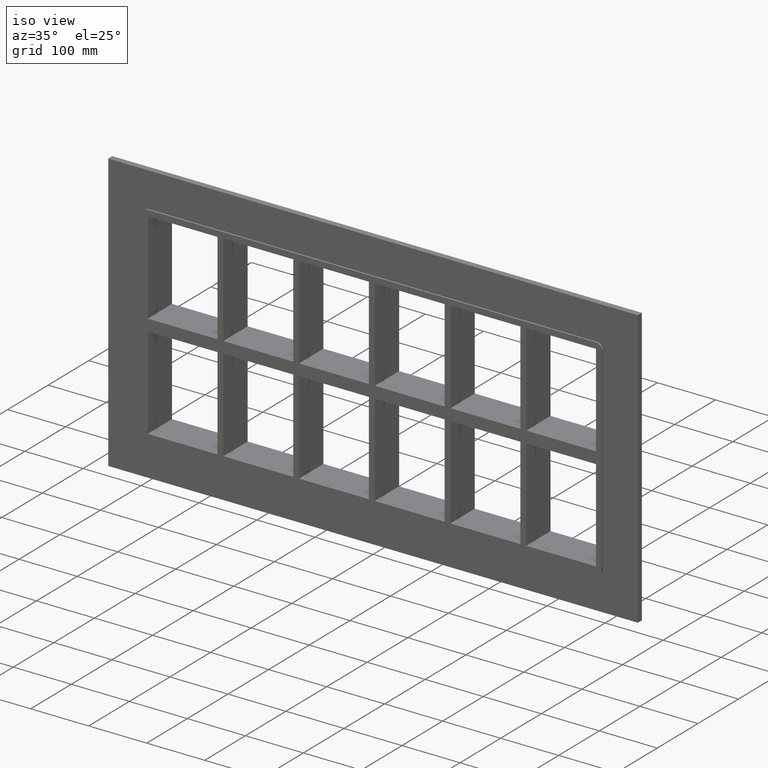
[diagram: clean part render]
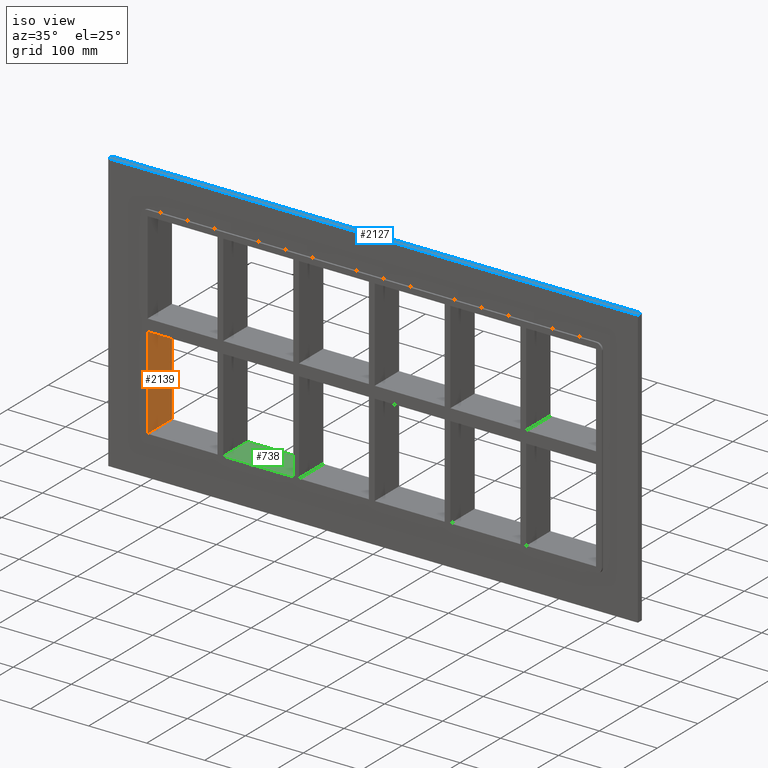
[diagram: same view with three faces highlighted in distinct colors, each labeled with its STEP entity id]
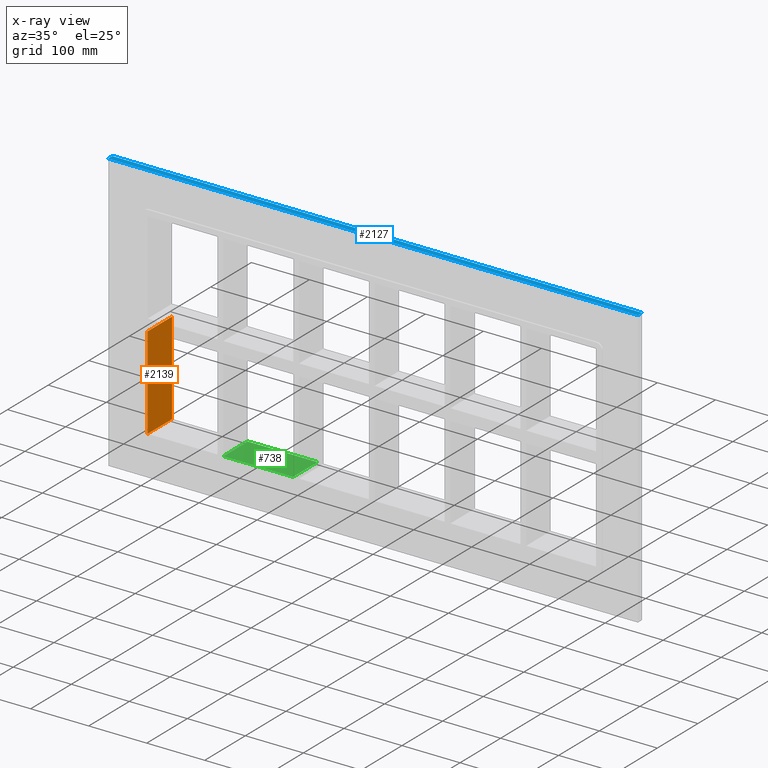
[diagram: x-ray of the same camera — body ghosted, the three highlighted faces saturated]
A machine part, iso view with three faces highlighted in distinct colors.
The next image is the same camera in x-ray (body ghosted, the three faces saturated) — at least one of them is partly hidden behind the body in this view.
Their STEP definitions:

[orange] entity #2139 — the highlighted planar face has unit normal (-1, 0, 0).
#1114=CARTESIAN_POINT('',(-386.49999999999977,-3.0,-10.000000000009379));
#1115=VERTEX_POINT('',#1114);
#1130=CARTESIAN_POINT('',(-386.50000000000006,-3.0,-169.50000000000003));
#1131=VERTEX_POINT('',#1130);
#1138=CARTESIAN_POINT('',(-386.50000000000006,-3.0,-169.50000000000003));
#1139=DIRECTION('',(0.0,0.0,1.0));
#1140=VECTOR('',#1139,159.49999999999065);
#1141=LINE('',#1138,#1140);
#1142=EDGE_CURVE('',#1131,#1115,#1141,.T.);
#1456=CARTESIAN_POINT('',(-386.49999999999977,57.0,-10.000000000009379));
#1457=VERTEX_POINT('',#1456);
#1458=CARTESIAN_POINT('',(-386.50000000000006,57.0,-169.50000000000003));
#1459=VERTEX_POINT('',#1458);
#1460=CARTESIAN_POINT('',(-386.50000000000006,57.0,-10.000000000009379));
#1461=DIRECTION('',(0.0,0.0,-1.0));
#1462=VECTOR('',#1461,159.49999999999065);
#1463=LINE('',#1460,#1462);
#1464=EDGE_CURVE('',#1457,#1459,#1463,.T.);
#1668=CARTESIAN_POINT('',(-386.50000000000006,57.000000000000007,-10.000000000009379));
#1669=DIRECTION('',(0.0,-1.0,0.0));
#1670=VECTOR('',#1669,60.000000000000007);
#1671=LINE('',#1668,#1670);
#1672=EDGE_CURVE('',#1457,#1115,#1671,.T.);
#1818=CARTESIAN_POINT('',(-386.50000000000006,-3.0,-169.50000000000003));
#1819=DIRECTION('',(0.0,1.0,0.0));
#1820=VECTOR('',#1819,60.0);
#1821=LINE('',#1818,#1820);
#1822=EDGE_CURVE('',#1131,#1459,#1821,.T.);
#2128=CARTESIAN_POINT('',(-386.50000000000006,0.0,-169.50000000000003));
#2129=DIRECTION('',(-1.0,0.0,0.0));
#2130=DIRECTION('',(0.0,0.0,1.0));
#2131=AXIS2_PLACEMENT_3D('',#2128,#2129,#2130);
#2132=PLANE('',#2131);
#2133=ORIENTED_EDGE('',*,*,#1672,.T.);
#2134=ORIENTED_EDGE('',*,*,#1142,.F.);
#2135=ORIENTED_EDGE('',*,*,#1822,.T.);
#2136=ORIENTED_EDGE('',*,*,#1464,.F.);
#2137=EDGE_LOOP('',(#2133,#2134,#2135,#2136));
#2138=FACE_OUTER_BOUND('',#2137,.T.);
#2139=ADVANCED_FACE('',(#2138),#2132,.F.);

[blue] entity #2127 — the highlighted planar face has unit normal (0, 0, 1).
#1845=CARTESIAN_POINT('',(-456.50000000000006,10.0,239.50000000000003));
#1846=VERTEX_POINT('',#1845);
#1847=CARTESIAN_POINT('',(456.50000000000006,10.0,239.50000000000003));
#1848=VERTEX_POINT('',#1847);
#1849=CARTESIAN_POINT('',(-456.50000000000006,10.0,239.50000000000003));
#1850=DIRECTION('',(1.0,0.0,0.0));
#1851=VECTOR('',#1850,913.00000000000011);
#1852=LINE('',#1849,#1851);
#1853=EDGE_CURVE('',#1846,#1848,#1852,.T.);
#1955=CARTESIAN_POINT('',(-456.50000000000006,0.0,239.50000000000003));
#1956=VERTEX_POINT('',#1955);
#1957=CARTESIAN_POINT('',(456.50000000000006,0.0,239.50000000000003));
#1958=VERTEX_POINT('',#1957);
#1959=CARTESIAN_POINT('',(-456.50000000000006,0.0,239.50000000000003));
#1960=DIRECTION('',(1.0,0.0,0.0));
#1961=VECTOR('',#1960,913.00000000000011);
#1962=LINE('',#1959,#1961);
#1963=EDGE_CURVE('',#1956,#1958,#1962,.T.);
#2066=CARTESIAN_POINT('',(-456.50000000000006,0.0,239.50000000000003));
#2067=DIRECTION('',(0.0,1.0,0.0));
#2068=VECTOR('',#2067,10.0);
#2069=LINE('',#2066,#2068);
#2070=EDGE_CURVE('',#1956,#1846,#2069,.T.);
#2107=CARTESIAN_POINT('',(456.50000000000006,0.0,239.50000000000003));
#2108=DIRECTION('',(0.0,1.0,0.0));
#2109=VECTOR('',#2108,10.0);
#2110=LINE('',#2107,#2109);
#2111=EDGE_CURVE('',#1958,#1848,#2110,.T.);
#2116=CARTESIAN_POINT('',(-456.50000000000006,0.0,239.50000000000003));
#2117=DIRECTION('',(0.0,0.0,1.0));
#2118=DIRECTION('',(1.0,0.0,0.0));
#2119=AXIS2_PLACEMENT_3D('',#2116,#2117,#2118);
#2120=PLANE('',#2119);
#2121=ORIENTED_EDGE('',*,*,#1963,.T.);
#2122=ORIENTED_EDGE('',*,*,#2111,.T.);
#2123=ORIENTED_EDGE('',*,*,#1853,.F.);
#2124=ORIENTED_EDGE('',*,*,#2070,.F.);
#2125=EDGE_LOOP('',(#2121,#2122,#2123,#2124));
#2126=FACE_OUTER_BOUND('',#2125,.T.);
#2127=ADVANCED_FACE('',(#2126),#2120,.T.);

[green] entity #738 — the highlighted planar face has unit normal (0, 0, -1).
#603=CARTESIAN_POINT('',(-135.50000000000136,57.0,-169.50000000000003));
#604=VERTEX_POINT('',#603);
#611=CARTESIAN_POINT('',(-135.50000000000136,-3.0,-169.50000000000003));
#612=VERTEX_POINT('',#611);
#613=CARTESIAN_POINT('',(-135.50000000000136,-3.0,-169.50000000000003));
#614=DIRECTION('',(0.0,1.0,0.0));
#615=VECTOR('',#614,60.000000000000007);
#616=LINE('',#613,#615);
#617=EDGE_CURVE('',#612,#604,#616,.T.);
#708=CARTESIAN_POINT('',(386.50000000000006,0.0,-169.50000000000003));
#709=DIRECTION('',(0.0,0.0,-1.0));
#710=DIRECTION('',(-1.0,0.0,0.0));
#711=AXIS2_PLACEMENT_3D('',#708,#709,#710);
#712=PLANE('',#711);
#713=ORIENTED_EDGE('',*,*,#617,.T.);
#714=CARTESIAN_POINT('',(-256.00000000000364,57.0,-169.49999999998411));
#715=VERTEX_POINT('',#714);
#716=CARTESIAN_POINT('',(-256.00000000000364,57.0,-169.50000000000003));
#717=DIRECTION('',(1.0,0.0,0.0));
#718=VECTOR('',#717,120.50000000000225);
#719=LINE('',#716,#718);
#720=EDGE_CURVE('',#715,#604,#719,.T.);
#721=ORIENTED_EDGE('',*,*,#720,.F.);
#722=CARTESIAN_POINT('',(-256.00000000000364,-3.0,-169.49999999998411));
#723=VERTEX_POINT('',#722);
#724=CARTESIAN_POINT('',(-256.00000000000364,57.000000000000007,-169.50000000000003));
#725=DIRECTION('',(0.0,-1.0,0.0));
#726=VECTOR('',#725,60.000000000000007);
#727=LINE('',#724,#726);
#728=EDGE_CURVE('',#715,#723,#727,.T.);
#729=ORIENTED_EDGE('',*,*,#728,.T.);
#730=CARTESIAN_POINT('',(-135.50000000000139,-3.0,-169.50000000000003));
#731=DIRECTION('',(-1.0,0.0,0.0));
#732=VECTOR('',#731,120.50000000000225);
#733=LINE('',#730,#732);
#734=EDGE_CURVE('',#612,#723,#733,.T.);
#735=ORIENTED_EDGE('',*,*,#734,.F.);
#736=EDGE_LOOP('',(#713,#721,#729,#735));
#737=FACE_OUTER_BOUND('',#736,.T.);
#738=ADVANCED_FACE('',(#737),#712,.F.);